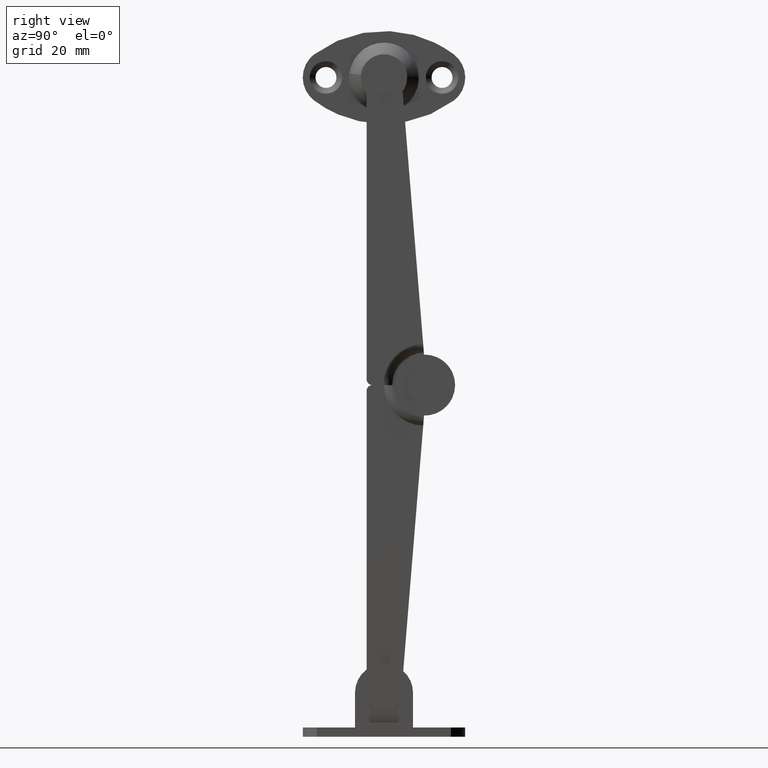
[diagram: clean part render]
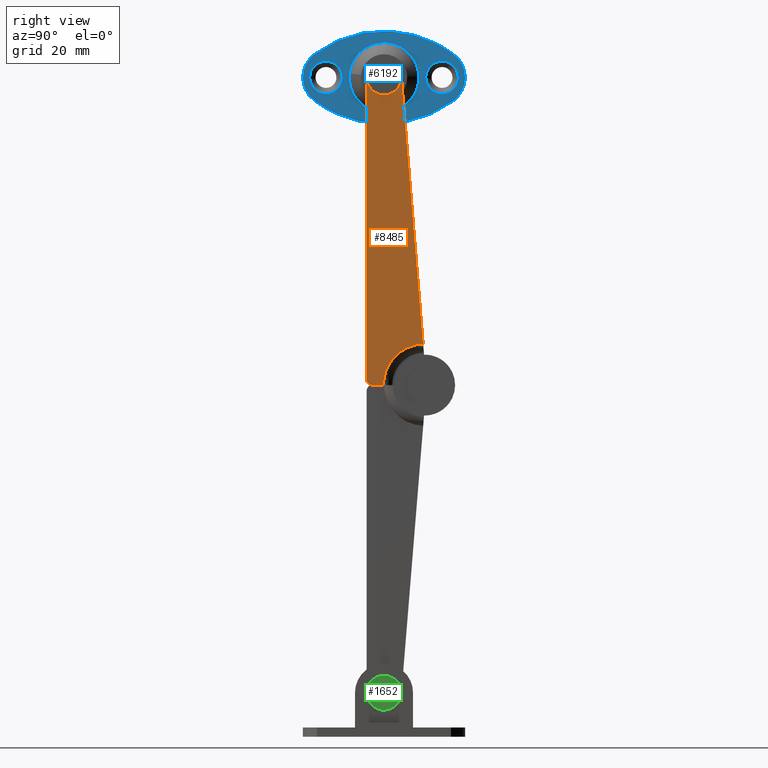
[diagram: same view with three faces highlighted in distinct colors, each labeled with its STEP entity id]
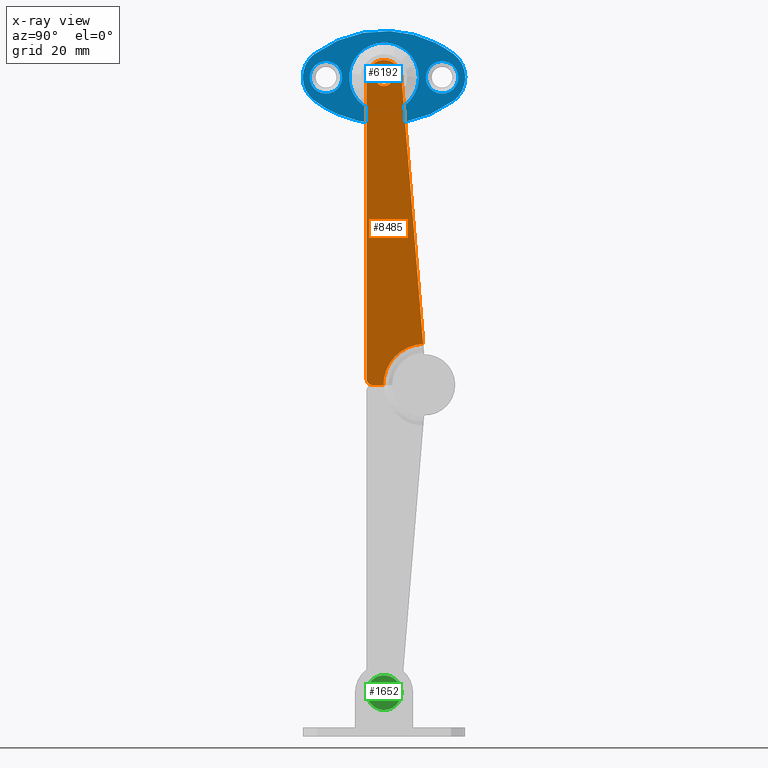
[diagram: x-ray of the same camera — body ghosted, the three highlighted faces saturated]
A machine part, right view with three faces highlighted in distinct colors.
The next image is the same camera in x-ray (body ghosted, the three faces saturated) — at least one of them is partly hidden behind the body in this view.
Their STEP definitions:

[orange] entity #8485 — the highlighted face is a freeform B-spline surface patch.
#7920=CARTESIAN_POINT('',(7.100006000000000,0.0,54.499984999999903));
#7921=VERTEX_POINT('',#7920);
#7922=CARTESIAN_POINT('',(7.100005999983649,1.074976049303020,54.046132349485660));
#7923=VERTEX_POINT('',#7922);
#7924=CARTESIAN_POINT('',(7.100006000000000,0.0,54.499984999999903));
#7925=CARTESIAN_POINT('',(7.100005999997540,0.162291412058530,54.500050657186982));
#7926=CARTESIAN_POINT('',(7.100005999991438,0.561787168289164,54.434577386073443));
#7927=CARTESIAN_POINT('',(7.100005999986170,0.909800772280016,54.216510535485270));
#7928=CARTESIAN_POINT('',(7.100005999983649,1.074976049303020,54.046132349485660));
#7929=B_SPLINE_CURVE_WITH_KNOTS('',3,(#7924,#7925,#7926,#7927,#7928),.UNSPECIFIED.,.F.,.U.,(4,1,4),(0.000000071665539,0.486899926305794,1.198513680607581),.UNSPECIFIED.);
#7930=EDGE_CURVE('',#7921,#7923,#7929,.T.);
#7932=CARTESIAN_POINT('',(7.100006000000000,-1.499999999997086,52.999987956542753));
#7933=VERTEX_POINT('',#7932);
#7934=CARTESIAN_POINT('',(7.100006000000000,-1.499999999997086,52.999987956542753));
#7935=CARTESIAN_POINT('',(7.100006000000010,-1.500345504166504,53.220947115413672));
#7936=CARTESIAN_POINT('',(7.100005999999986,-1.419902202312754,53.576520627130620));
#7937=CARTESIAN_POINT('',(7.100006000000010,-1.169937271202812,53.960551640118567));
#7938=CARTESIAN_POINT('',(7.100006000000019,-0.884186755191410,54.232695456121156));
#7939=CARTESIAN_POINT('',(7.100005999999937,-0.503098553576138,54.442454066388493));
#7940=CARTESIAN_POINT('',(7.100006000000034,-0.171816070136129,54.500083933787216));
#7941=CARTESIAN_POINT('',(7.100006000000000,0.0,54.499984999999903));
#7942=B_SPLINE_CURVE_WITH_KNOTS('',3,(#7934,#7935,#7936,#7937,#7938,#7939,#7940,#7941),.UNSPECIFIED.,.F.,.U.,(4,1,1,1,1,4),(0.000000287959406,0.662699813077106,1.067678081423677,1.362177245450322,1.840825642440949,2.356251950158681),.UNSPECIFIED.);
#7943=EDGE_CURVE('',#7933,#7921,#7942,.T.);
#7945=CARTESIAN_POINT('',(7.100006000000000,0.0,51.499984999999903));
#7946=VERTEX_POINT('',#7945);
#7947=CARTESIAN_POINT('',(7.100006000000000,0.0,51.499984999999903));
#7948=CARTESIAN_POINT('',(7.100006000000001,-0.220947910776413,51.499695142395602));
#7949=CARTESIAN_POINT('',(7.100005999999977,-0.576546858612334,51.580028233956227));
#7950=CARTESIAN_POINT('',(7.100006000000028,-0.960563260915911,51.830059898195529));
#7951=CARTESIAN_POINT('',(7.100005999999968,-1.232707476369145,52.115804518421243));
#7952=CARTESIAN_POINT('',(7.100006000000045,-1.442468953475998,52.496887251179672));
#7953=CARTESIAN_POINT('',(7.100006000000005,-1.500099463422700,52.828171954617737));
#7954=CARTESIAN_POINT('',(7.100006000000000,-1.499999999997086,52.999987956542753));
#7955=B_SPLINE_CURVE_WITH_KNOTS('',3,(#7947,#7948,#7949,#7950,#7951,#7952,#7953,#7954),.UNSPECIFIED.,.F.,.U.,(4,1,1,1,1,4),(0.000000283921502,0.662700747276204,1.067679596140593,1.362179177619558,1.840828248528661,2.356255282954716),.UNSPECIFIED.);
#7956=EDGE_CURVE('',#7946,#7933,#7955,.T.);
#7958=CARTESIAN_POINT('',(7.100006000029023,1.105916695774086,51.986599352294022));
#7959=VERTEX_POINT('',#7958);
#7960=CARTESIAN_POINT('',(7.100006000029023,1.105916695774086,51.986599352294022));
#7961=CARTESIAN_POINT('',(7.100006000026043,0.992217564127774,51.862357183187392));
#7962=CARTESIAN_POINT('',(7.100006000020315,0.774271002525512,51.693224444746569));
#7963=CARTESIAN_POINT('',(7.100006000010205,0.388582288967348,51.535333113205809));
#7964=CARTESIAN_POINT('',(7.100006000003724,0.142498399730489,51.499928147469909));
#7965=CARTESIAN_POINT('',(7.100006000000000,0.0,51.499984999999903));
#7966=B_SPLINE_CURVE_WITH_KNOTS('',3,(#7960,#7961,#7962,#7963,#7964,#7965),.UNSPECIFIED.,.F.,.U.,(4,1,1,4),(0.000000086125803,0.505209562169892,0.816090851088607,1.243582383780117),.UNSPECIFIED.);
#7967=EDGE_CURVE('',#7959,#7946,#7966,.T.);
#8044=CARTESIAN_POINT('',(7.100006000000000,1.499999999997086,52.999982043457031));
#8045=VERTEX_POINT('',#8044);
#8046=CARTESIAN_POINT('',(7.100005999983649,1.074976049303020,54.046132349485660));
#8047=CARTESIAN_POINT('',(7.100005999985398,1.184353705386899,53.933821032911702));
#8048=CARTESIAN_POINT('',(7.100005999990406,1.409746797209448,53.614682495747637));
#8049=CARTESIAN_POINT('',(7.100005999996416,1.500392953631893,53.229196244301868));
#8050=CARTESIAN_POINT('',(7.100006000000000,1.499999999997086,52.999982043457031));
#8051=B_SPLINE_CURVE_WITH_KNOTS('',3,(#8046,#8047,#8048,#8049,#8050),.UNSPECIFIED.,.F.,.U.,(4,1,4),(0.000000060383531,0.470336184058728,1.157742364871850),.UNSPECIFIED.);
#8052=EDGE_CURVE('',#7923,#8045,#8051,.T.);
#8074=CARTESIAN_POINT('',(7.100006000000000,1.499999999997086,52.999982043457031));
#8075=CARTESIAN_POINT('',(7.100006000006976,1.500546441723577,52.756460554494673));
#8076=CARTESIAN_POINT('',(7.100006000017580,1.407638035736507,52.386135468214000));
#8077=CARTESIAN_POINT('',(7.100006000026333,1.192053415228026,52.080582408141773));
#8078=CARTESIAN_POINT('',(7.100006000029023,1.105916695774086,51.986599352294022));
#8079=B_SPLINE_CURVE_WITH_KNOTS('',3,(#8074,#8075,#8076,#8077,#8078),.UNSPECIFIED.,.F.,.U.,(4,1,4),(0.000000063143153,0.730185760886172,1.112669400919029),.UNSPECIFIED.);
#8080=EDGE_CURVE('',#8045,#7959,#8079,.T.);
#8102=CARTESIAN_POINT('',(7.100006000000000,-0.100005948289692,-8.483039E-014));
#8103=VERTEX_POINT('',#8102);
#8131=CARTESIAN_POINT('',(7.100006000000000,6.747916441950870,7.095529461957770));
#8132=VERTEX_POINT('',#8131);
#8144=CARTESIAN_POINT('',(7.100006000000000,6.747916441950870,7.095529461957770));
#8145=CARTESIAN_POINT('',(7.100005999999989,6.379123853069105,7.082441330958708));
#8146=CARTESIAN_POINT('',(7.100006000000016,5.558712252402136,6.988939378955556));
#8147=CARTESIAN_POINT('',(7.100005999999998,4.191255553558995,6.584892116648963));
#8148=CARTESIAN_POINT('',(7.100005999999973,2.792297417399161,5.803708958229778));
#8149=CARTESIAN_POINT('',(7.100006000000035,1.599820253031602,4.694517273586000));
#8150=CARTESIAN_POINT('',(7.100005999999964,0.657453390073578,3.333952621277961));
#8151=CARTESIAN_POINT('',(7.100006000000073,0.043633329981386,1.759981531190739));
#8152=CARTESIAN_POINT('',(7.100005999999936,-0.100097572581572,0.567731613647850));
#8153=CARTESIAN_POINT('',(7.100006000000000,-0.100005948289692,-8.483039E-014));
#8154=B_SPLINE_CURVE_WITH_KNOTS('',3,(#8144,#8145,#8146,#8147,#8148,#8149,#8150,#8151,#8152,#8153),.UNSPECIFIED.,.F.,.U.,(4,1,1,1,1,1,1,4),(0.000000120483660,1.107084137558026,2.469662091652481,4.258044308645573,5.876060269217323,7.323819381424075,9.197384289599123,10.900592052356769),.UNSPECIFIED.);
#8155=EDGE_CURVE('',#8132,#8103,#8154,.T.);
#8410=CARTESIAN_POINT('',(7.100006000000000,7.234824666320034,-2.797192053876846));
#8411=CARTESIAN_POINT('',(7.100006000000000,-3.486908660134986,-2.797192053876846));
#8412=CARTESIAN_POINT('',(7.100006000000000,7.234824666320034,58.797036647181670));
#8413=CARTESIAN_POINT('',(7.100006000000000,-3.486908660134986,58.797036647181670));
#8414=B_SPLINE_SURFACE_WITH_KNOTS('',1,1,((#8410,#8412),(#8411,#8413)),.UNSPECIFIED.,.F.,.F.,.U.,(2,2),(2,2),(0.0,10.721733326455020),(0.0,61.594228701058533),.UNSPECIFIED.);
#8415=CARTESIAN_POINT('',(7.100006000000000,2.990626677684695,53.236949289969097));
#8416=VERTEX_POINT('',#8415);
#8417=CARTESIAN_POINT('',(7.100006000000000,2.990626677684695,53.236949289969097));
#8418=CARTESIAN_POINT('',(7.100006000000000,6.747916441950870,7.095529461957770));
#8419=QUASI_UNIFORM_CURVE('',1,(#8417,#8418),.UNSPECIFIED.,.F.,.U.);
#8420=EDGE_CURVE('',#8416,#8132,#8419,.T.);
#8421=ORIENTED_EDGE('',*,*,#8420,.F.);
#8422=CARTESIAN_POINT('',(7.100006000000001,-0.118572530996184,55.997640843303657));
#8423=VERTEX_POINT('',#8422);
#8424=CARTESIAN_POINT('',(7.100006000000001,-0.118572530996184,55.997640843303657));
#8425=CARTESIAN_POINT('',(7.100006000000005,0.240076242279070,56.012114551559407));
#8426=CARTESIAN_POINT('',(7.100005999999998,0.793670256921140,55.933661956647668));
#8427=CARTESIAN_POINT('',(7.100006000000001,1.519521793127018,55.613767884208052));
#8428=CARTESIAN_POINT('',(7.100006000000002,2.025619575735349,55.244451713206082));
#8429=CARTESIAN_POINT('',(7.100005999999989,2.440042505484541,54.776708630801267));
#8430=CARTESIAN_POINT('',(7.100005999999983,2.819153340742466,54.135220140970880));
#8431=CARTESIAN_POINT('',(7.100006000000021,2.962576723283559,53.594792114188373));
#8432=CARTESIAN_POINT('',(7.100006000000000,2.990626677684695,53.236949289969097));
#8433=B_SPLINE_CURVE_WITH_KNOTS('',3,(#8424,#8425,#8426,#8427,#8428,#8429,#8430,#8431,#8432),.UNSPECIFIED.,.F.,.U.,(4,1,1,1,1,1,4),(0.000000108021760,1.076689829616801,1.650944508005207,2.368712149427292,2.942946159900401,3.517200838289102,4.593890559884289),.UNSPECIFIED.);
#8434=EDGE_CURVE('',#8423,#8416,#8433,.T.);
#8435=ORIENTED_EDGE('',*,*,#8434,.F.);
#8436=CARTESIAN_POINT('',(7.100006000000000,-3.0,52.999985000000002));
#8437=VERTEX_POINT('',#8436);
#8438=CARTESIAN_POINT('',(7.100006000000000,-3.0,52.999985000000002));
#8439=CARTESIAN_POINT('',(7.100006000000009,-3.000303637761308,53.358926264342607));
#8440=CARTESIAN_POINT('',(7.100005999999985,-2.900013056583433,53.908992882761609));
#8441=CARTESIAN_POINT('',(7.100006000000014,-2.572736356379170,54.578399101581148));
#8442=CARTESIAN_POINT('',(7.100005999999981,-2.138813176684725,55.154344400318458));
#8443=CARTESIAN_POINT('',(7.100006000000030,-1.507080159574899,55.646251995137568));
#8444=CARTESIAN_POINT('',(7.100005999999962,-0.762335430671923,55.928523127638762));
#8445=CARTESIAN_POINT('',(7.100006000000037,-0.309823550801236,55.990090082761313));
#8446=CARTESIAN_POINT('',(7.100006000000001,-0.118572530996184,55.997640843303657));
#8447=B_SPLINE_CURVE_WITH_KNOTS('',3,(#8438,#8439,#8440,#8441,#8442,#8443,#8444,#8445,#8446),.UNSPECIFIED.,.F.,.U.,(4,1,1,1,1,1,4),(0.000000108013510,1.076690894653815,1.650946141133624,2.225180719614787,3.230076102008616,4.019680025533387,4.593895104111393),.UNSPECIFIED.);
#8448=EDGE_CURVE('',#8437,#8423,#8447,.T.);
#8449=ORIENTED_EDGE('',*,*,#8448,.F.);
#8450=CARTESIAN_POINT('',(7.100006000000000,-2.999999999999885,1.0));
#8451=VERTEX_POINT('',#8450);
#8452=CARTESIAN_POINT('',(7.100006000000000,-2.999999999999885,1.0));
#8453=CARTESIAN_POINT('',(7.100006000000000,-3.0,52.999985000000002));
#8454=QUASI_UNIFORM_CURVE('',1,(#8452,#8453),.UNSPECIFIED.,.F.,.U.);
#8455=EDGE_CURVE('',#8451,#8437,#8454,.T.);
#8456=ORIENTED_EDGE('',*,*,#8455,.F.);
#8457=CARTESIAN_POINT('',(7.100006000000000,-1.999999999999885,1.224606E-016));
#8458=VERTEX_POINT('',#8457);
#8459=CARTESIAN_POINT('',(7.100006000000000,-1.999999999999885,1.224606E-016));
#8460=CARTESIAN_POINT('',(7.100005999999990,-2.171891308472290,-0.000423189527022));
#8461=CARTESIAN_POINT('',(7.100006000000028,-2.465986888418433,0.077848094255826));
#8462=CARTESIAN_POINT('',(7.100005999999975,-2.752429571909667,0.318972803059963));
#8463=CARTESIAN_POINT('',(7.100006000000041,-2.945438767376129,0.615713100927828));
#8464=CARTESIAN_POINT('',(7.100005999999969,-3.000305766267963,0.844478433063125));
#8465=CARTESIAN_POINT('',(7.100006000000000,-2.999999999999885,1.0));
#8466=B_SPLINE_CURVE_WITH_KNOTS('',3,(#8459,#8460,#8461,#8462,#8463,#8464,#8465),.UNSPECIFIED.,.F.,.U.,(4,1,1,1,4),(0.000000280012489,0.515444720644189,0.883567168157065,1.104486430735651,1.570835744389278),.UNSPECIFIED.);
#8467=EDGE_CURVE('',#8458,#8451,#8466,.T.);
#8468=ORIENTED_EDGE('',*,*,#8467,.F.);
#8469=CARTESIAN_POINT('',(7.100006000000000,-0.100005948289692,-8.483039E-014));
#8470=CARTESIAN_POINT('',(7.100006000000000,-1.999999999999885,1.224606E-016));
#8471=QUASI_UNIFORM_CURVE('',1,(#8469,#8470),.UNSPECIFIED.,.F.,.U.);
#8472=EDGE_CURVE('',#8103,#8458,#8471,.T.);
#8473=ORIENTED_EDGE('',*,*,#8472,.F.);
#8474=ORIENTED_EDGE('',*,*,#8155,.F.);
#8475=EDGE_LOOP('',(#8421,#8435,#8449,#8456,#8468,#8473,#8474));
#8476=FACE_OUTER_BOUND('',#8475,.T.);
#8477=ORIENTED_EDGE('',*,*,#7956,.T.);
#8478=ORIENTED_EDGE('',*,*,#7943,.T.);
#8479=ORIENTED_EDGE('',*,*,#7930,.T.);
#8480=ORIENTED_EDGE('',*,*,#8052,.T.);
#8481=ORIENTED_EDGE('',*,*,#8080,.T.);
#8482=ORIENTED_EDGE('',*,*,#7967,.T.);
#8483=EDGE_LOOP('',(#8477,#8478,#8479,#8480,#8481,#8482));
#8484=FACE_BOUND('',#8483,.T.);
#8485=ADVANCED_FACE('',(#8476,#8484),#8414,.F.);

[blue] entity #6192 — the highlighted face is a freeform B-spline surface patch.
#4828=CARTESIAN_POINT('',(1.000000279720715,-7.862043549917228,54.808063257049582));
#4829=VERTEX_POINT('',#4828);
#4830=CARTESIAN_POINT('',(1.0,-10.0,55.799985011920917));
#4831=VERTEX_POINT('',#4830);
#4832=CARTESIAN_POINT('',(1.000000279720715,-7.862043549917228,54.808063257049582));
#4833=CARTESIAN_POINT('',(1.000000247647418,-8.107185604610042,55.098680710114358));
#4834=CARTESIAN_POINT('',(1.000000191677765,-8.534971877972495,55.433306863460707));
#4835=CARTESIAN_POINT('',(1.000000092820036,-9.290559526302605,55.735072310211180));
#4836=CARTESIAN_POINT('',(1.000000036471971,-9.721238084157843,55.800131513003507));
#4837=CARTESIAN_POINT('',(1.0,-10.0,55.799985011920917));
#4838=B_SPLINE_CURVE_WITH_KNOTS('',3,(#4832,#4833,#4834,#4835,#4836,#4837),.UNSPECIFIED.,.F.,.U.,(4,1,1,4),(0.000000028214663,1.140337960629695,1.596471829773692,2.432719612176400),.UNSPECIFIED.);
#4839=EDGE_CURVE('',#4829,#4831,#4838,.T.);
#4841=CARTESIAN_POINT('',(1.0,-12.800000011920011,52.999982730735979));
#4842=VERTEX_POINT('',#4841);
#4843=CARTESIAN_POINT('',(1.0,-10.0,55.799985011920917));
#4844=CARTESIAN_POINT('',(1.000000000000001,-10.297818920945421,55.800146246857970));
#4845=CARTESIAN_POINT('',(0.999999999999999,-10.755850131423269,55.726178250400118));
#4846=CARTESIAN_POINT('',(1.0,-11.410963296245070,55.445323905451147));
#4847=CARTESIAN_POINT('',(0.999999999999999,-12.010635205834220,55.012137736072333));
#4848=CARTESIAN_POINT('',(1.000000000000002,-12.467610664487211,54.395968051479890));
#4849=CARTESIAN_POINT('',(0.999999999999999,-12.740804086455430,53.687151221018027));
#4850=CARTESIAN_POINT('',(0.999999999999999,-12.800085878979750,53.251973180107782));
#4851=CARTESIAN_POINT('',(1.0,-12.800000011920011,52.999982730735979));
#4852=B_SPLINE_CURVE_WITH_KNOTS('',3,(#4843,#4844,#4845,#4846,#4847,#4848,#4849,#4850,#4851),.UNSPECIFIED.,.F.,.U.,(4,1,1,1,1,1,4),(0.000000111760950,0.893405949663565,1.374484837937017,2.130458843368638,3.092577369274591,3.642377977166476,4.398341381892176),.UNSPECIFIED.);
#4853=EDGE_CURVE('',#4831,#4842,#4852,.T.);
#4855=CARTESIAN_POINT('',(1.0,-10.0,50.199984988079073));
#4856=VERTEX_POINT('',#4855);
#4857=CARTESIAN_POINT('',(1.0,-12.800000011920011,52.999982730735979));
#4858=CARTESIAN_POINT('',(1.0,-12.800180470399830,52.702164068106413));
#4859=CARTESIAN_POINT('',(1.0,-12.718797835893261,52.198313564011222));
#4860=CARTESIAN_POINT('',(1.0,-12.440435858325630,51.590644643073617));
#4861=CARTESIAN_POINT('',(0.999999999999997,-12.117173669883520,51.143442656707421));
#4862=CARTESIAN_POINT('',(1.000000000000005,-11.733760069977061,50.778382275128322));
#4863=CARTESIAN_POINT('',(0.999999999999994,-11.228151550022041,50.458176011418409));
#4864=CARTESIAN_POINT('',(1.000000000000004,-10.641405968286611,50.248238765516739));
#4865=CARTESIAN_POINT('',(0.999999999999999,-10.206161293952951,50.199954772012013));
#4866=CARTESIAN_POINT('',(1.0,-10.0,50.199984988079073));
#4867=B_SPLINE_CURVE_WITH_KNOTS('',3,(#4857,#4858,#4859,#4860,#4861,#4862,#4863,#4864,#4865,#4866),.UNSPECIFIED.,.F.,.U.,(4,1,1,1,1,1,1,4),(0.000000114872435,0.893405432808597,1.511938607830814,1.993025693798528,2.542756020363570,3.092575571245487,3.779837764214965,4.398338823838902),.UNSPECIFIED.);
#4868=EDGE_CURVE('',#4842,#4856,#4867,.T.);
#4870=CARTESIAN_POINT('',(0.999999716730694,-8.072607764821687,50.968937368946541));
#4871=VERTEX_POINT('',#4870);
#4872=CARTESIAN_POINT('',(1.0,-10.0,50.199984988079073));
#4873=CARTESIAN_POINT('',(0.999999951176818,-9.667802250301472,50.199718385623036));
#4874=CARTESIAN_POINT('',(0.999999847066105,-8.959422742910320,50.327664559347802));
#4875=CARTESIAN_POINT('',(0.999999756823913,-8.345405958561008,50.709424818993178));
#4876=CARTESIAN_POINT('',(0.999999716730694,-8.072607764821687,50.968937368946541));
#4877=B_SPLINE_CURVE_WITH_KNOTS('',3,(#4872,#4873,#4874,#4875,#4876),.UNSPECIFIED.,.F.,.U.,(4,1,4),(0.000000041350098,0.996506570270155,2.125860563688280),.UNSPECIFIED.);
#4878=EDGE_CURVE('',#4856,#4871,#4877,.T.);
#4956=CARTESIAN_POINT('',(1.0,-7.199999988079995,52.999987269264032));
#4957=VERTEX_POINT('',#4956);
#4958=CARTESIAN_POINT('',(1.0,-7.199999988079995,52.999987269264032));
#4959=CARTESIAN_POINT('',(1.000000047517704,-7.199827078181830,53.307135219038869));
#4960=CARTESIAN_POINT('',(1.000000148858490,-7.308927988930476,53.962188183466687));
#4961=CARTESIAN_POINT('',(1.000000238631863,-7.637002608995186,54.542470674482473));
#4962=CARTESIAN_POINT('',(1.000000279720715,-7.862043549917228,54.808063257049582));
#4963=B_SPLINE_CURVE_WITH_KNOTS('',3,(#4958,#4959,#4960,#4961,#4962),.UNSPECIFIED.,.F.,.U.,(4,1,4),(0.000000040114906,0.921397779684069,1.965622611075958),.UNSPECIFIED.);
#4964=EDGE_CURVE('',#4957,#4829,#4963,.T.);
#4986=CARTESIAN_POINT('',(0.999999716730694,-8.072607764821687,50.968937368946541));
#4987=CARTESIAN_POINT('',(0.999999741719728,-7.883656800282517,51.148109614630677));
#4988=CARTESIAN_POINT('',(0.999999791296788,-7.601043136875387,51.503578841343007));
#4989=CARTESIAN_POINT('',(0.999999887768744,-7.282831996942081,52.195285796031989));
#4990=CARTESIAN_POINT('',(0.999999957076984,-7.199788766724113,52.692228015973917));
#4991=CARTESIAN_POINT('',(1.0,-7.199999988079995,52.999987269264032));
#4992=B_SPLINE_CURVE_WITH_KNOTS('',3,(#4986,#4987,#4988,#4989,#4990,#4991),.UNSPECIFIED.,.F.,.U.,(4,1,1,4),(0.000000035942009,0.781174251389624,1.349275938180474,2.272481507819086),.UNSPECIFIED.);
#4993=EDGE_CURVE('',#4871,#4957,#4992,.T.);
#5024=CARTESIAN_POINT('',(1.000000279720715,12.137956450082770,54.808063257049568));
#5025=VERTEX_POINT('',#5024);
#5026=CARTESIAN_POINT('',(1.0,10.0,55.799985011920917));
#5027=VERTEX_POINT('',#5026);
#5028=CARTESIAN_POINT('',(1.000000279720715,12.137956450082770,54.808063257049568));
#5029=CARTESIAN_POINT('',(1.000000247647771,11.892817089710050,55.098648098940977));
#5030=CARTESIAN_POINT('',(1.000000181016644,11.383543211152739,55.497140642627492));
#5031=CARTESIAN_POINT('',(1.000000079569809,10.608166593334380,55.758968618969483));
#5032=CARTESIAN_POINT('',(1.000000023207224,10.177377025723890,55.799991046450778));
#5033=CARTESIAN_POINT('',(1.0,10.0,55.799985011920917));
#5034=B_SPLINE_CURVE_WITH_KNOTS('',3,(#5028,#5029,#5030,#5031,#5032,#5033),.UNSPECIFIED.,.F.,.U.,(4,1,1,4),(0.000000028214500,1.140337960629779,1.900562257673920,2.432719612176404),.UNSPECIFIED.);
#5035=EDGE_CURVE('',#5025,#5027,#5034,.T.);
#5037=CARTESIAN_POINT('',(1.0,7.199999988079995,52.999982730735979));
#5038=VERTEX_POINT('',#5037);
#5039=CARTESIAN_POINT('',(1.0,10.0,55.799985011920917));
#5040=CARTESIAN_POINT('',(1.000000000000001,9.702185944905397,55.800126951850238));
#5041=CARTESIAN_POINT('',(0.999999999999998,9.244144803251672,55.726200179114109));
#5042=CARTESIAN_POINT('',(1.000000000000001,8.589032913542072,55.445319837953747));
#5043=CARTESIAN_POINT('',(1.000000000000000,7.989375898486603,55.012128900458769));
#5044=CARTESIAN_POINT('',(0.999999999999996,7.532384842703102,54.395972441884510));
#5045=CARTESIAN_POINT('',(1.000000000000010,7.259194787107863,53.687152917434730));
#5046=CARTESIAN_POINT('',(0.999999999999990,7.199915514979629,53.251970701589627));
#5047=CARTESIAN_POINT('',(1.0,7.199999988079995,52.999982730735979));
#5048=B_SPLINE_CURVE_WITH_KNOTS('',3,(#5039,#5040,#5041,#5042,#5043,#5044,#5045,#5046,#5047),.UNSPECIFIED.,.F.,.U.,(4,1,1,1,1,1,4),(0.000000111761395,0.893405949664069,1.374484837937523,2.130458843369012,3.092577369274629,3.642377977166454,4.398341381892157),.UNSPECIFIED.);
#5049=EDGE_CURVE('',#5027,#5038,#5048,.T.);
#5051=CARTESIAN_POINT('',(1.0,10.0,50.199984988079073));
#5052=VERTEX_POINT('',#5051);
#5053=CARTESIAN_POINT('',(1.0,7.199999988079995,52.999982730735979));
#5054=CARTESIAN_POINT('',(1.000000000000000,7.199843918160883,52.702169370764317));
#5055=CARTESIAN_POINT('',(1.000000000000002,7.281177209343987,52.198307584374113));
#5056=CARTESIAN_POINT('',(0.999999999999998,7.559570510131799,51.590645651748297));
#5057=CARTESIAN_POINT('',(1.000000000000003,7.882825514633467,51.143443531903920));
#5058=CARTESIAN_POINT('',(0.999999999999998,8.266240277807285,50.778379657616959));
#5059=CARTESIAN_POINT('',(1.000000000000003,8.732958634547758,50.482835847685692));
#5060=CARTESIAN_POINT('',(0.999999999999999,9.312814373452191,50.259154487960700));
#5061=CARTESIAN_POINT('',(0.999999999999997,9.748011143470720,50.199899017735852));
#5062=CARTESIAN_POINT('',(1.0,10.0,50.199984988079073));
#5063=B_SPLINE_CURVE_WITH_KNOTS('',3,(#5053,#5054,#5055,#5056,#5057,#5058,#5059,#5060,#5061,#5062),.UNSPECIFIED.,.F.,.U.,(4,1,1,1,1,1,1,4),(0.000000114868369,0.893405432805311,1.511938607828221,1.993025693796428,2.542756020361995,3.092575571244510,3.642375857700790,4.398338823838949),.UNSPECIFIED.);
#5064=EDGE_CURVE('',#5038,#5052,#5063,.T.);
#5066=CARTESIAN_POINT('',(0.999999716730695,11.927392235178321,50.968937368946527));
#5067=VERTEX_POINT('',#5066);
#5068=CARTESIAN_POINT('',(1.0,10.0,50.199984988079073));
#5069=CARTESIAN_POINT('',(0.999999964199384,10.243590924750929,50.199919126777019));
#5070=CARTESIAN_POINT('',(0.999999902370282,10.664282196317339,50.255241493312703));
#5071=CARTESIAN_POINT('',(0.999999804310335,11.331491760362880,50.503250162467289));
#5072=CARTESIAN_POINT('',(0.999999747407064,11.718667168385240,50.770646770754652));
#5073=CARTESIAN_POINT('',(0.999999716730695,11.927392235178321,50.968937368946527));
#5074=B_SPLINE_CURVE_WITH_KNOTS('',3,(#5068,#5069,#5070,#5071,#5072,#5073),.UNSPECIFIED.,.F.,.U.,(4,1,1,4),(0.000000041350045,0.730773045289324,1.262215219051544,2.125860563688299),.UNSPECIFIED.);
#5075=EDGE_CURVE('',#5052,#5067,#5074,.T.);
#5152=CARTESIAN_POINT('',(1.0,12.800000011920011,52.999987269264032));
#5153=VERTEX_POINT('',#5152);
#5154=CARTESIAN_POINT('',(1.0,12.800000011920011,52.999987269264032));
#5155=CARTESIAN_POINT('',(1.000000047518406,12.800194119817920,53.307139767331847));
#5156=CARTESIAN_POINT('',(1.000000148857315,12.691039372719461,53.962180528354672));
#5157=CARTESIAN_POINT('',(1.000000238632327,12.363008813483130,54.542473724621729));
#5158=CARTESIAN_POINT('',(1.000000279720715,12.137956450082770,54.808063257049568));
#5159=B_SPLINE_CURVE_WITH_KNOTS('',3,(#5154,#5155,#5156,#5157,#5158),.UNSPECIFIED.,.F.,.U.,(4,1,4),(0.000000040114842,0.921397779684437,1.965622611075947),.UNSPECIFIED.);
#5160=EDGE_CURVE('',#5153,#5025,#5159,.T.);
#5182=CARTESIAN_POINT('',(0.999999716730695,11.927392235178321,50.968937368946527));
#5183=CARTESIAN_POINT('',(0.999999734908599,12.064772013502830,51.099273586534217));
#5184=CARTESIAN_POINT('',(0.999999777687875,12.328437482802981,51.406002454803406));
#5185=CARTESIAN_POINT('',(0.999999871275433,12.690429981388171,52.077028267723414));
#5186=CARTESIAN_POINT('',(0.999999950471080,12.800348323472710,52.644863491682742));
#5187=CARTESIAN_POINT('',(1.0,12.800000011920011,52.999987269264032));
#5188=B_SPLINE_CURVE_WITH_KNOTS('',3,(#5182,#5183,#5184,#5185,#5186,#5187),.UNSPECIFIED.,.F.,.U.,(4,1,1,4),(0.000000035940231,0.568120403842783,1.207250702292531,2.272481507819101),.UNSPECIFIED.);
#5189=EDGE_CURVE('',#5067,#5153,#5188,.T.);
#5783=CARTESIAN_POINT('',(1.000000000095370,0.0,46.999954362778439));
#5784=VERTEX_POINT('',#5783);
#5795=CARTESIAN_POINT('',(0.999999999999989,6.000030637242536,52.999986564974037));
#5796=VERTEX_POINT('',#5795);
#5797=CARTESIAN_POINT('',(1.000000000095370,0.0,46.999954362778439));
#5798=CARTESIAN_POINT('',(1.000000000091470,0.490880786195347,46.999855985823373));
#5799=CARTESIAN_POINT('',(1.000000000082483,1.497131981242799,47.124080966007902));
#5800=CARTESIAN_POINT('',(1.000000000066930,2.902314534487170,47.675937160806072));
#5801=CARTESIAN_POINT('',(1.000000000051010,4.064675521908918,48.516242242162889));
#5802=CARTESIAN_POINT('',(1.000000000035511,4.973746061365706,49.557115547510399));
#5803=CARTESIAN_POINT('',(1.000000000022465,5.551058732980219,50.621460233971632));
#5804=CARTESIAN_POINT('',(1.000000000010215,5.915597473054913,51.797375715971157));
#5805=CARTESIAN_POINT('',(1.000000000003521,6.000106028931620,52.558194879034097));
#5806=CARTESIAN_POINT('',(0.999999999999989,6.000030637242536,52.999986564974037));
#5807=B_SPLINE_CURVE_WITH_KNOTS('',3,(#5797,#5798,#5799,#5800,#5801,#5802,#5803,#5804,#5805,#5806),.UNSPECIFIED.,.F.,.U.,(4,1,1,1,1,1,1,4),(0.000000141350824,1.472628336983540,3.018918080293982,4.491550469331012,5.743265877058748,7.142297839512166,8.099519647422101,9.424886104466790),.UNSPECIFIED.);
#5808=EDGE_CURVE('',#5784,#5796,#5807,.T.);
#5810=CARTESIAN_POINT('',(0.999999999999989,0.0,59.000015637242633));
#5811=VERTEX_POINT('',#5810);
#5812=CARTESIAN_POINT('',(0.999999999999989,6.000030637242536,52.999986564974037));
#5813=CARTESIAN_POINT('',(0.999999999996871,6.000073323483396,53.392680430111611));
#5814=CARTESIAN_POINT('',(0.999999999991058,5.920243481680952,54.202608205578017));
#5815=CARTESIAN_POINT('',(0.999999999983822,5.511137200268579,55.522658852520422));
#5816=CARTESIAN_POINT('',(0.999999999980137,4.790218571676352,56.708938735519460));
#5817=CARTESIAN_POINT('',(0.999999999980106,3.935518862363848,57.563305697630632));
#5818=CARTESIAN_POINT('',(0.999999999981872,3.158294973239641,58.125082897934810));
#5819=CARTESIAN_POINT('',(0.999999999984923,2.330450693412613,58.561106114235287));
#5820=CARTESIAN_POINT('',(0.999999999990798,1.251706948333235,58.910152384901473));
#5821=CARTESIAN_POINT('',(0.999999999996437,0.441790279924994,59.000092567445172));
#5822=CARTESIAN_POINT('',(0.999999999999989,0.0,59.000015637242633));
#5823=B_SPLINE_CURVE_WITH_KNOTS('',3,(#5812,#5813,#5814,#5815,#5816,#5817,#5818,#5819,#5820,#5821,#5822),.UNSPECIFIED.,.F.,.U.,(4,1,1,1,1,1,1,1,4),(0.000000141845032,1.178084739998155,2.429854636789644,4.123421711851592,5.301463153409047,6.037808446957115,6.995030075432388,8.099518132118353,9.424884340377355),.UNSPECIFIED.);
#5824=EDGE_CURVE('',#5796,#5811,#5823,.T.);
#5826=CARTESIAN_POINT('',(0.999999999983932,-5.959900265029725,53.692773913589889));
#5827=VERTEX_POINT('',#5826);
#5828=CARTESIAN_POINT('',(0.999999999999989,0.0,59.000015637242633));
#5829=CARTESIAN_POINT('',(0.999999999999993,-0.500182535592214,59.000121292686529));
#5830=CARTESIAN_POINT('',(0.999999999999584,-1.546005237763548,58.868563642505698));
#5831=CARTESIAN_POINT('',(0.999999999997951,-2.885079905737067,58.323653048850453));
#5832=CARTESIAN_POINT('',(0.999999999995727,-3.907801720667165,57.593964174062549));
#5833=CARTESIAN_POINT('',(0.999999999993026,-4.785727516772957,56.697940206249449));
#5834=CARTESIAN_POINT('',(0.999999999989209,-5.576882112640800,55.433425123750851));
#5835=CARTESIAN_POINT('',(0.999999999985769,-5.889269256696897,54.302585780082012));
#5836=CARTESIAN_POINT('',(0.999999999983932,-5.959900265029725,53.692773913589889));
#5837=B_SPLINE_CURVE_WITH_KNOTS('',3,(#5828,#5829,#5830,#5831,#5832,#5833,#5834,#5835,#5836),.UNSPECIFIED.,.F.,.U.,(4,1,1,1,1,1,4),(0.000000119236178,1.500546162959898,3.137541194101448,4.297102522765404,5.251961977478112,6.888945838584212,8.730535493513097),.UNSPECIFIED.);
#5838=EDGE_CURVE('',#5811,#5827,#5837,.T.);
#5877=CARTESIAN_POINT('',(0.999999999983932,-5.959900265029725,53.692773913589889));
#5878=CARTESIAN_POINT('',(0.999999999984691,-5.996423977903398,53.378678509778403));
#5879=CARTESIAN_POINT('',(0.999999999987224,-6.022600762082289,52.665422625618518));
#5880=CARTESIAN_POINT('',(0.999999999993743,-5.869815544271304,51.590514053245244));
#5881=CARTESIAN_POINT('',(1.000000000003605,-5.490007942727101,50.489746055295072));
#5882=CARTESIAN_POINT('',(1.000000000014241,-4.987096386950858,49.618176153328953));
#5883=CARTESIAN_POINT('',(1.000000000026339,-4.355213065720491,48.839080628068032));
#5884=CARTESIAN_POINT('',(1.000000000041701,-3.493748736774705,48.055575797516603));
#5885=CARTESIAN_POINT('',(1.000000000060000,-2.377530539512049,47.435236693267228));
#5886=CARTESIAN_POINT('',(1.000000000079047,-1.133102094993236,47.073158431730739));
#5887=CARTESIAN_POINT('',(1.000000000089810,-0.395281779013352,46.999899240068878));
#5888=CARTESIAN_POINT('',(1.000000000095370,0.0,46.999954362778439));
#5889=B_SPLINE_CURVE_WITH_KNOTS('',3,(#5877,#5878,#5879,#5880,#5881,#5882,#5883,#5884,#5885,#5886,#5887,#5888),.UNSPECIFIED.,.F.,.U.,(4,1,1,1,1,1,1,1,1,4),(0.000000148549395,0.948644327661986,2.134527668661005,3.241321667233336,4.427169297679289,5.138636659338365,6.245456871284889,7.905657498055026,8.933398561117654,10.119236876828490),.UNSPECIFIED.);
#5890=EDGE_CURVE('',#5827,#5784,#5889,.T.);
#5951=CARTESIAN_POINT('',(1.0,-12.000001215909680,48.999985911932313));
#5952=VERTEX_POINT('',#5951);
#5953=CARTESIAN_POINT('',(1.0,-12.000000303977441,56.999984772016802));
#5954=VERTEX_POINT('',#5953);
#5955=CARTESIAN_POINT('',(1.0,-12.000001215909680,48.999985911932313));
#5956=CARTESIAN_POINT('',(1.0,-12.367147130601060,49.275168120077758));
#5957=CARTESIAN_POINT('',(0.999999999999999,-12.972859212469180,49.876060650854193));
#5958=CARTESIAN_POINT('',(1.0,-13.531613239422271,50.816608953712112));
#5959=CARTESIAN_POINT('',(1.000000000000001,-13.869894396087840,51.749900058800549));
#5960=CARTESIAN_POINT('',(1.0,-14.010888373191611,52.588284262583322));
#5961=CARTESIAN_POINT('',(1.0,-13.997180361559931,53.532440315412302));
#5962=CARTESIAN_POINT('',(0.999999999999999,-13.801909855471671,54.557762804608757));
#5963=CARTESIAN_POINT('',(1.000000000000002,-13.215845193923631,55.844518478852677));
#5964=CARTESIAN_POINT('',(0.999999999999999,-12.483312080998470,56.638119981955917));
#5965=CARTESIAN_POINT('',(1.0,-12.000000303977441,56.999984772016802));
#5966=B_SPLINE_CURVE_WITH_KNOTS('',3,(#5955,#5956,#5957,#5958,#5959,#5960,#5961,#5962,#5963,#5964,#5965),.UNSPECIFIED.,.F.,.U.,(4,1,1,1,1,1,1,1,4),(0.000000195412355,1.376442723777005,2.535597305842404,3.260056615065541,4.346735477653800,5.071143077445544,6.085403843432801,7.461895374438236,9.273031385396289),.UNSPECIFIED.);
#5967=EDGE_CURVE('',#5952,#5954,#5966,.T.);
#6014=CARTESIAN_POINT('',(1.0,12.000000653043241,48.999985489782503));
#6015=VERTEX_POINT('',#6014);
#6016=CARTESIAN_POINT('',(1.0,12.000000653043241,48.999985489782503));
#6017=CARTESIAN_POINT('',(1.0,11.142043633151550,48.356432870020377));
#6018=CARTESIAN_POINT('',(1.000000000000001,9.208516567757739,47.136045253633860));
#6019=CARTESIAN_POINT('',(0.999999999999998,5.849932324167305,45.746877543496623));
#6020=CARTESIAN_POINT('',(1.000000000000002,2.549238181407868,45.074103792656530));
#6021=CARTESIAN_POINT('',(0.999999999999998,-0.268940153042382,44.960885812278548));
#6022=CARTESIAN_POINT('',(1.000000000000006,-2.679136887272839,45.130767491002892));
#6023=CARTESIAN_POINT('',(0.999999999999994,-5.186184143095630,45.615602502119820));
#6024=CARTESIAN_POINT('',(1.000000000000017,-8.489951311677807,46.753756024451143));
#6025=CARTESIAN_POINT('',(0.999999999999999,-10.713183993034880,48.034424169162449));
#6026=CARTESIAN_POINT('',(1.0,-12.000001215909680,48.999985911932313));
#6027=B_SPLINE_CURVE_WITH_KNOTS('',3,(#6016,#6017,#6018,#6019,#6020,#6021,#6022,#6023,#6024,#6025,#6026),.UNSPECIFIED.,.F.,.U.,(4,1,1,1,1,1,1,1,4),(5.735902E-009,3.217500482306242,6.837231422051982,10.859129919964300,13.272267417552349,15.283208779775769,18.098539017626859,20.913885415482920,25.740155110707800),.UNSPECIFIED.);
#6028=EDGE_CURVE('',#6015,#5952,#6027,.T.);
#6069=CARTESIAN_POINT('',(1.0,12.000000373790600,56.999984719657000));
#6070=VERTEX_POINT('',#6069);
#6071=CARTESIAN_POINT('',(1.0,12.000000373790600,56.999984719657000));
#6072=CARTESIAN_POINT('',(0.999999999999999,12.270479513883711,56.797169546068787));
#6073=CARTESIAN_POINT('',(1.000000000000001,12.805801370168350,56.303504406086901));
#6074=CARTESIAN_POINT('',(1.000000000000001,13.361692763962431,55.505643331296788));
#6075=CARTESIAN_POINT('',(0.999999999999999,13.776522681499710,54.577178001216879));
#6076=CARTESIAN_POINT('',(1.0,13.999964223933841,53.630784513350051));
#6077=CARTESIAN_POINT('',(1.0,14.016129725983660,52.514337853094688));
#6078=CARTESIAN_POINT('',(1.000000000000001,13.815332014434061,51.538041705941140));
#6079=CARTESIAN_POINT('',(1.000000000000002,13.458085153364509,50.689602725006800));
#6080=CARTESIAN_POINT('',(0.999999999999992,12.919575497803670,49.826317710424370));
#6081=CARTESIAN_POINT('',(1.000000000000013,12.386498295751361,49.289626665860240));
#6082=CARTESIAN_POINT('',(1.0,12.000000653043241,48.999985489782503));
#6083=B_SPLINE_CURVE_WITH_KNOTS('',3,(#6071,#6072,#6073,#6074,#6075,#6076,#6077,#6078,#6079,#6080,#6081,#6082),.UNSPECIFIED.,.F.,.U.,(4,1,1,1,1,1,1,1,1,4),(0.000000195457259,1.014230860705755,2.173364743708129,2.897838434724382,4.056960657539793,5.071143414512408,6.230312874571720,7.027220932507115,7.824143853841798,9.273032001728801),.UNSPECIFIED.);
#6084=EDGE_CURVE('',#6070,#6015,#6083,.T.);
#6125=CARTESIAN_POINT('',(1.0,-12.000000303977441,56.999984772016802));
#6126=CARTESIAN_POINT('',(1.000000000000000,-11.142037377770221,57.643528210561101));
#6127=CARTESIAN_POINT('',(1.0,-9.208529957967141,58.863956980398228));
#6128=CARTESIAN_POINT('',(1.000000000000002,-6.347478399754499,60.047195593126013));
#6129=CARTESIAN_POINT('',(0.999999999999996,-3.608701297213133,60.721101418967443));
#6130=CARTESIAN_POINT('',(1.000000000000004,-0.942098972567752,61.044479829794227));
#6131=CARTESIAN_POINT('',(0.999999999999999,1.747276057110549,60.990370525312350));
#6132=CARTESIAN_POINT('',(1.0,4.929070758049223,60.474157235323439));
#6133=CARTESIAN_POINT('',(1.000000000000006,8.380388793107771,59.323708533403902));
#6134=CARTESIAN_POINT('',(0.999999999999988,10.820397808888780,57.885027882630453));
#6135=CARTESIAN_POINT('',(1.0,12.000000373790600,56.999984719657000));
#6136=B_SPLINE_CURVE_WITH_KNOTS('',3,(#6125,#6126,#6127,#6128,#6129,#6130,#6131,#6132,#6133,#6134,#6135),.UNSPECIFIED.,.F.,.U.,(4,1,1,1,1,1,1,1,4),(5.713311E-009,3.217500296163742,6.837231026518442,9.250375326765980,11.663508222364429,14.881019865707440,17.294155016124591,21.316075419286800,25.740153621707979),.UNSPECIFIED.);
#6137=EDGE_CURVE('',#5954,#6070,#6136,.T.);
#6159=CARTESIAN_POINT('',(1.0,15.398612636767030,44.200778885240467));
#6160=CARTESIAN_POINT('',(1.0,-15.398613888464540,44.200778885240467));
#6161=CARTESIAN_POINT('',(1.0,15.398612636767030,61.799141332960097));
#6162=CARTESIAN_POINT('',(1.0,-15.398613888464540,61.799141332960097));
#6163=B_SPLINE_SURFACE_WITH_KNOTS('',1,1,((#6159,#6161),(#6160,#6162)),.UNSPECIFIED.,.F.,.F.,.U.,(2,2),(2,2),(0.0,30.797226525231551),(0.0,17.598362447719630),.UNSPECIFIED.);
#6164=ORIENTED_EDGE('',*,*,#6137,.F.);
#6165=ORIENTED_EDGE('',*,*,#5967,.F.);
#6166=ORIENTED_EDGE('',*,*,#6028,.F.);
#6167=ORIENTED_EDGE('',*,*,#6084,.F.);
#6168=EDGE_LOOP('',(#6164,#6165,#6166,#6167));
#6169=FACE_OUTER_BOUND('',#6168,.T.);
#6170=ORIENTED_EDGE('',*,*,#5838,.F.);
#6171=ORIENTED_EDGE('',*,*,#5824,.F.);
#6172=ORIENTED_EDGE('',*,*,#5808,.F.);
#6173=ORIENTED_EDGE('',*,*,#5890,.F.);
#6174=EDGE_LOOP('',(#6170,#6171,#6172,#6173));
#6175=FACE_BOUND('',#6174,.T.);
#6176=ORIENTED_EDGE('',*,*,#5049,.F.);
#6177=ORIENTED_EDGE('',*,*,#5035,.F.);
#6178=ORIENTED_EDGE('',*,*,#5160,.F.);
#6179=ORIENTED_EDGE('',*,*,#5189,.F.);
#6180=ORIENTED_EDGE('',*,*,#5075,.F.);
#6181=ORIENTED_EDGE('',*,*,#5064,.F.);
#6182=EDGE_LOOP('',(#6176,#6177,#6178,#6179,#6180,#6181));
#6183=FACE_BOUND('',#6182,.T.);
#6184=ORIENTED_EDGE('',*,*,#4853,.F.);
#6185=ORIENTED_EDGE('',*,*,#4839,.F.);
#6186=ORIENTED_EDGE('',*,*,#4964,.F.);
#6187=ORIENTED_EDGE('',*,*,#4993,.F.);
#6188=ORIENTED_EDGE('',*,*,#4878,.F.);
#6189=ORIENTED_EDGE('',*,*,#4868,.F.);
#6190=EDGE_LOOP('',(#6184,#6185,#6186,#6187,#6188,#6189));
#6191=FACE_BOUND('',#6190,.T.);
#6192=ADVANCED_FACE('',(#6169,#6175,#6183,#6191),#6163,.F.);

[green] entity #1652 — the highlighted face is a freeform B-spline surface patch.
#1237=CARTESIAN_POINT('',(10.700027999999961,-2.149952449573771,-50.907688331328373));
#1238=VERTEX_POINT('',#1237);
#1244=CARTESIAN_POINT('',(10.700027999999961,1.708703E-013,-49.999984000000111));
#1245=VERTEX_POINT('',#1244);
#1246=CARTESIAN_POINT('',(10.700027999999961,1.708703E-013,-49.999984000000111));
#1247=CARTESIAN_POINT('',(10.700027999999950,-0.324619895627146,-49.999797137008613));
#1248=CARTESIAN_POINT('',(10.700027999999969,-0.848816771329625,-50.085950434713091));
#1249=CARTESIAN_POINT('',(10.700027999999950,-1.580538622436331,-50.416690532246832));
#1250=CARTESIAN_POINT('',(10.700027999999950,-1.958467121040771,-50.710776061530673));
#1251=CARTESIAN_POINT('',(10.700027999999961,-2.149952449573771,-50.907688331328373));
#1252=B_SPLINE_CURVE_WITH_KNOTS('',3,(#1246,#1247,#1248,#1249,#1250,#1251),.UNSPECIFIED.,.F.,.U.,(4,1,1,4),(0.000000035588466,0.973802560424382,1.573040260552155,2.397027281675889),.UNSPECIFIED.);
#1253=EDGE_CURVE('',#1245,#1238,#1252,.T.);
#1255=CARTESIAN_POINT('',(10.700027999999961,2.999999999999254,-52.999981799568523));
#1256=VERTEX_POINT('',#1255);
#1257=CARTESIAN_POINT('',(10.700027999999961,2.999999999999254,-52.999981799568523));
#1258=CARTESIAN_POINT('',(10.700027999999969,3.000173632639850,-52.680890083825837));
#1259=CARTESIAN_POINT('',(10.700027999999961,2.916965950034233,-52.165593293791780));
#1260=CARTESIAN_POINT('',(10.700027999999950,2.627079203839997,-51.511744502053141));
#1261=CARTESIAN_POINT('',(10.700027999999961,2.286273649750750,-51.027828602103867));
#1262=CARTESIAN_POINT('',(10.700027999999961,1.857596604785686,-50.619695837335172));
#1263=CARTESIAN_POINT('',(10.700027999999950,1.357538967180534,-50.303033739543167));
#1264=CARTESIAN_POINT('',(10.700027999999961,0.736263935075301,-50.063379774581442));
#1265=CARTESIAN_POINT('',(10.700027999999961,0.269985814926358,-49.999891077191030));
#1266=CARTESIAN_POINT('',(10.700027999999961,1.708703E-013,-49.999984000000111));
#1267=B_SPLINE_CURVE_WITH_KNOTS('',3,(#1257,#1258,#1259,#1260,#1261,#1262,#1263,#1264,#1265,#1266),.UNSPECIFIED.,.F.,.U.,(4,1,1,1,1,1,1,4),(0.000000083126537,0.957222660980202,1.546306470995375,2.135372679501878,2.724391496191124,3.313474383907527,3.902558943568832,4.712505992774159),.UNSPECIFIED.);
#1268=EDGE_CURVE('',#1256,#1245,#1267,.T.);
#1270=CARTESIAN_POINT('',(10.700027999999961,1.708703E-013,-55.999983999999891));
#1271=VERTEX_POINT('',#1270);
#1272=CARTESIAN_POINT('',(10.700027999999961,1.708703E-013,-55.999983999999891));
#1273=CARTESIAN_POINT('',(10.700027999999939,0.269983966576198,-56.000071110225953));
#1274=CARTESIAN_POINT('',(10.700027999999980,0.785342409033858,-55.929905971355844));
#1275=CARTESIAN_POINT('',(10.700027999999939,1.585109786270475,-55.598895396615958));
#1276=CARTESIAN_POINT('',(10.700027999999991,2.278241612982150,-55.030048051153450));
#1277=CARTESIAN_POINT('',(10.700027999999900,2.742730653661644,-54.296286725248841));
#1278=CARTESIAN_POINT('',(10.700027999999991,2.958895319040318,-53.613557487169331));
#1279=CARTESIAN_POINT('',(10.700027999999900,3.000022680216589,-53.196322372246811));
#1280=CARTESIAN_POINT('',(10.700027999999961,2.999999999999254,-52.999981799568523));
#1281=B_SPLINE_CURVE_WITH_KNOTS('',3,(#1272,#1273,#1274,#1275,#1276,#1277,#1278,#1279,#1280),.UNSPECIFIED.,.F.,.U.,(4,1,1,1,1,1,4),(0.000000080112171,0.809948894618362,1.546307282656201,2.577133832927358,3.460747757288890,4.123470350630771,4.712508473235213),.UNSPECIFIED.);
#1282=EDGE_CURVE('',#1271,#1256,#1281,.T.);
#1284=CARTESIAN_POINT('',(10.700027999999961,-2.211832345928240,-55.026755067878931));
#1285=VERTEX_POINT('',#1284);
#1286=CARTESIAN_POINT('',(10.700027999999961,-2.211832345928240,-55.026755067878931));
#1287=CARTESIAN_POINT('',(10.700027999999961,-1.949551765571267,-55.313622617488953));
#1288=CARTESIAN_POINT('',(10.700027999999961,-1.502841522876787,-55.641743140173062));
#1289=CARTESIAN_POINT('',(10.700027999999961,-0.725334759780514,-55.936722799970973));
#1290=CARTESIAN_POINT('',(10.700027999999991,-0.284994624609850,-56.000092956583458));
#1291=CARTESIAN_POINT('',(10.700027999999961,1.708703E-013,-55.999983999999891));
#1292=B_SPLINE_CURVE_WITH_KNOTS('',3,(#1286,#1287,#1288,#1289,#1290,#1291),.UNSPECIFIED.,.F.,.U.,(4,1,1,4),(0.000000023747177,1.165858597430599,1.632200921158744,2.487163845557737),.UNSPECIFIED.);
#1293=EDGE_CURVE('',#1285,#1271,#1292,.T.);
#1378=CARTESIAN_POINT('',(10.700027999999961,-2.999999999998912,-52.999986200431493));
#1379=VERTEX_POINT('',#1378);
#1380=CARTESIAN_POINT('',(10.700027999999961,-2.999999999998912,-52.999986200431493));
#1381=CARTESIAN_POINT('',(10.700027999999980,-3.000260001221298,-53.347724468381557));
#1382=CARTESIAN_POINT('',(10.700027999999930,-2.869486502095040,-54.089280065239613));
#1383=CARTESIAN_POINT('',(10.700027999999980,-2.478448269870746,-54.736482435452771));
#1384=CARTESIAN_POINT('',(10.700027999999961,-2.211832345928240,-55.026755067878931));
#1385=B_SPLINE_CURVE_WITH_KNOTS('',3,(#1380,#1381,#1382,#1383,#1384),.UNSPECIFIED.,.F.,.U.,(4,1,4),(0.000000039538132,1.043138832931993,2.225342710487167),.UNSPECIFIED.);
#1386=EDGE_CURVE('',#1379,#1285,#1385,.T.);
#1388=CARTESIAN_POINT('',(10.700027999999961,-2.149952449573771,-50.907688331328373));
#1389=CARTESIAN_POINT('',(10.700027999999961,-2.335062175372068,-51.097766776956483));
#1390=CARTESIAN_POINT('',(10.700027999999961,-2.610696908427241,-51.468897197208982));
#1391=CARTESIAN_POINT('',(10.700027999999950,-2.919819493717656,-52.180034424256192));
#1392=CARTESIAN_POINT('',(10.700027999999969,-3.000185445939454,-52.686408635980172));
#1393=CARTESIAN_POINT('',(10.700027999999961,-2.999999999998912,-52.999986200431493));
#1394=B_SPLINE_CURVE_WITH_KNOTS('',3,(#1388,#1389,#1390,#1391,#1392,#1393),.UNSPECIFIED.,.F.,.U.,(4,1,1,4),(0.000000030066438,0.795954926505608,1.374808124055615,2.315481825062430),.UNSPECIFIED.);
#1395=EDGE_CURVE('',#1238,#1379,#1394,.T.);
#1639=CARTESIAN_POINT('',(10.700027999999961,-3.299699988369655,-56.299684734030187));
#1640=CARTESIAN_POINT('',(10.700027999999961,-3.299699988369655,-49.700284714362681));
#1641=CARTESIAN_POINT('',(10.700027999999961,3.299700149302538,-56.299684734030187));
#1642=CARTESIAN_POINT('',(10.700027999999961,3.299700149302538,-49.700284714362681));
#1643=B_SPLINE_SURFACE_WITH_KNOTS('',1,1,((#1639,#1641),(#1640,#1642)),.UNSPECIFIED.,.F.,.F.,.U.,(2,2),(2,2),(0.0,6.599400019667506),(0.0,6.599400137672193),.UNSPECIFIED.);
#1644=ORIENTED_EDGE('',*,*,#1253,.T.);
#1645=ORIENTED_EDGE('',*,*,#1395,.T.);
#1646=ORIENTED_EDGE('',*,*,#1386,.T.);
#1647=ORIENTED_EDGE('',*,*,#1293,.T.);
#1648=ORIENTED_EDGE('',*,*,#1282,.T.);
#1649=ORIENTED_EDGE('',*,*,#1268,.T.);
#1650=EDGE_LOOP('',(#1644,#1645,#1646,#1647,#1648,#1649));
#1651=FACE_OUTER_BOUND('',#1650,.T.);
#1652=ADVANCED_FACE('',(#1651),#1643,.F.);